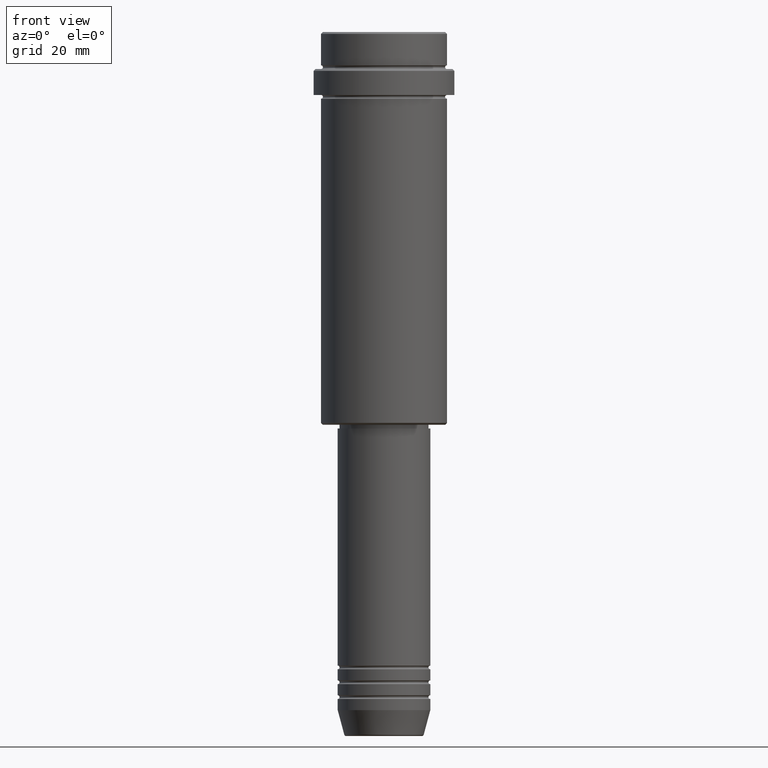
[diagram: clean part render]
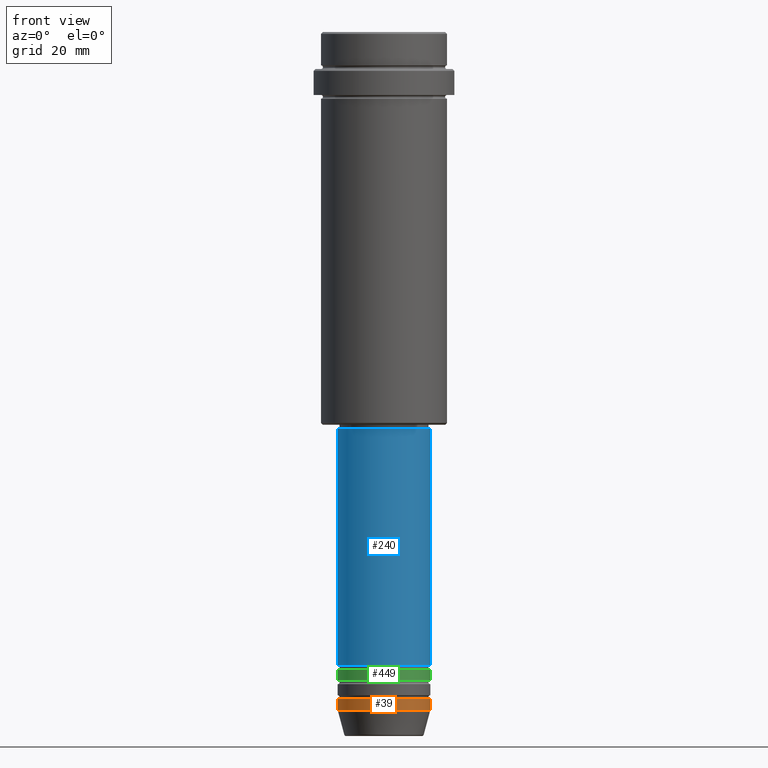
[diagram: same view with three faces highlighted in distinct colors, each labeled with its STEP entity id]
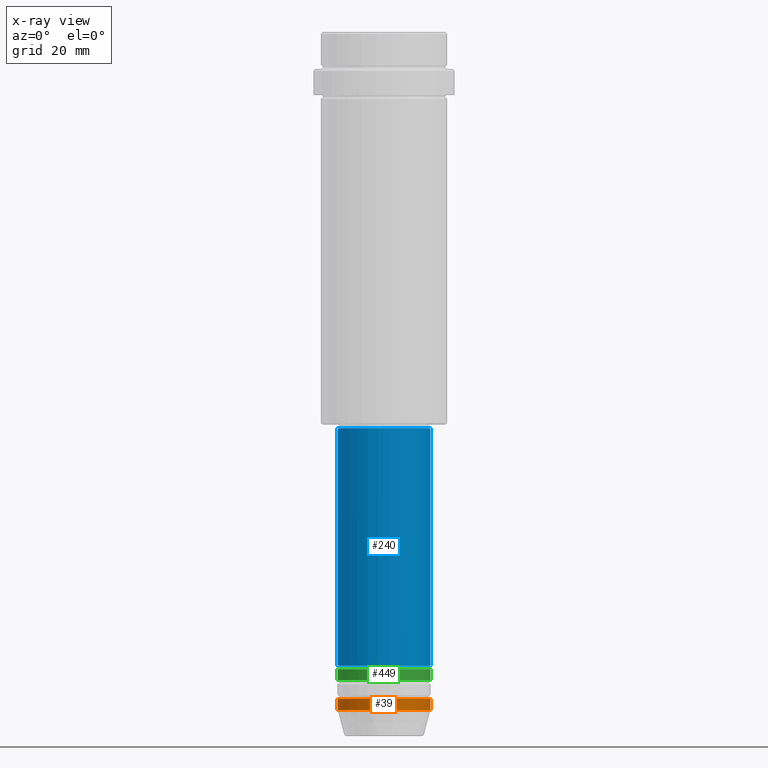
[diagram: x-ray of the same camera — body ghosted, the three highlighted faces saturated]
A machine part, front view with three faces highlighted in distinct colors.
The next image is the same camera in x-ray (body ghosted, the three faces saturated) — at least one of them is partly hidden behind the body in this view.
Their STEP definitions:

[orange] entity #39 — the highlighted cylindrical surface (partial cylindrical patch) has radius 12.5 mm, axis along (-0, -0, 1).
#33 = CARTESIAN_POINT ( 'NONE',  ( 0.000000000000000000, 0.000000000000000000, -183.0000000000000000 ) ) ;
#39 = ADVANCED_FACE ( 'NONE', ( #86 ), #529, .T. ) ;
#44 = CARTESIAN_POINT ( 'NONE',  ( -12.50000000000000000, 1.530808498934191521E-15, 0.000000000000000000 ) ) ;
#47 = CIRCLE ( 'NONE', #1390, 12.50000000000000000 ) ;
#84 = VERTEX_POINT ( 'NONE', #1190 ) ;
#86 = FACE_OUTER_BOUND ( 'NONE', #1262, .T. ) ;
#182 = AXIS2_PLACEMENT_3D ( 'NONE', #33, #1098, #463 ) ;
#200 = LINE ( 'NONE', #862, #1085 ) ;
#234 = DIRECTION ( 'NONE',  ( -0.000000000000000000, -0.000000000000000000, 1.000000000000000000 ) ) ;
#275 = DIRECTION ( 'NONE',  ( 1.000000000000000000, 0.000000000000000000, 0.000000000000000000 ) ) ;
#282 = EDGE_CURVE ( 'NONE', #1005, #1207, #695, .T. ) ;
#423 = CARTESIAN_POINT ( 'NONE',  ( 0.000000000000000000, 0.000000000000000000, 0.000000000000000000 ) ) ;
#463 = DIRECTION ( 'NONE',  ( 1.000000000000000000, 0.000000000000000000, 0.000000000000000000 ) ) ;
#485 = ORIENTED_EDGE ( 'NONE', *, *, #555, .T. ) ;
#529 = CYLINDRICAL_SURFACE ( 'NONE', #841, 12.50000000000000000 ) ;
#555 = EDGE_CURVE ( 'NONE', #1207, #1015, #200, .T. ) ;
#559 = CARTESIAN_POINT ( 'NONE',  ( -12.50000000000000000, 1.530808498934191521E-15, -183.0000000000000000 ) ) ;
#592 = LINE ( 'NONE', #44, #1016 ) ;
#641 = DIRECTION ( 'NONE',  ( -0.000000000000000000, -0.000000000000000000, 1.000000000000000000 ) ) ;
#695 = CIRCLE ( 'NONE', #182, 12.50000000000000000 ) ;
#752 = DIRECTION ( 'NONE',  ( -0.000000000000000000, -0.000000000000000000, 1.000000000000000000 ) ) ;
#773 = ORIENTED_EDGE ( 'NONE', *, *, #1008, .F. ) ;
#815 = CARTESIAN_POINT ( 'NONE',  ( 0.000000000000000000, 0.000000000000000000, -180.0000000000000000 ) ) ;
#841 = AXIS2_PLACEMENT_3D ( 'NONE', #423, #752, #1170 ) ;
#862 = CARTESIAN_POINT ( 'NONE',  ( 12.50000000000000000, 0.000000000000000000, 0.000000000000000000 ) ) ;
#905 = EDGE_CURVE ( 'NONE', #84, #1015, #47, .T. ) ;
#912 = CARTESIAN_POINT ( 'NONE',  ( 12.50000000000000000, 0.000000000000000000, -180.0000000000000000 ) ) ;
#1005 = VERTEX_POINT ( 'NONE', #559 ) ;
#1008 = EDGE_CURVE ( 'NONE', #1005, #84, #592, .T. ) ;
#1015 = VERTEX_POINT ( 'NONE', #912 ) ;
#1016 = VECTOR ( 'NONE', #234, 1000.000000000000000 ) ;
#1085 = VECTOR ( 'NONE', #641, 1000.000000000000000 ) ;
#1091 = ORIENTED_EDGE ( 'NONE', *, *, #282, .T. ) ;
#1098 = DIRECTION ( 'NONE',  ( -0.000000000000000000, -0.000000000000000000, 1.000000000000000000 ) ) ;
#1168 = ORIENTED_EDGE ( 'NONE', *, *, #905, .F. ) ;
#1170 = DIRECTION ( 'NONE',  ( 1.000000000000000000, 0.000000000000000000, 0.000000000000000000 ) ) ;
#1190 = CARTESIAN_POINT ( 'NONE',  ( -12.50000000000000000, 1.530808498934191521E-15, -180.0000000000000000 ) ) ;
#1197 = CARTESIAN_POINT ( 'NONE',  ( 12.50000000000000000, 0.000000000000000000, -183.0000000000000000 ) ) ;
#1207 = VERTEX_POINT ( 'NONE', #1197 ) ;
#1262 = EDGE_LOOP ( 'NONE', ( #773, #1091, #485, #1168 ) ) ;
#1263 = DIRECTION ( 'NONE',  ( -0.000000000000000000, -0.000000000000000000, 1.000000000000000000 ) ) ;
#1390 = AXIS2_PLACEMENT_3D ( 'NONE', #815, #1263, #275 ) ;

[blue] entity #240 — the highlighted cylindrical surface (partial cylindrical patch) has radius 12.5 mm, axis along (-0, -0, 1).
#11 = ORIENTED_EDGE ( 'NONE', *, *, #398, .T. ) ;
#45 = EDGE_CURVE ( 'NONE', #1114, #1288, #1308, .T. ) ;
#50 = CARTESIAN_POINT ( 'NONE',  ( 0.000000000000000000, 0.000000000000000000, -107.0000000000000000 ) ) ;
#89 = CIRCLE ( 'NONE', #1082, 12.50000000000000000 ) ;
#162 = DIRECTION ( 'NONE',  ( -0.000000000000000000, -0.000000000000000000, 1.000000000000000000 ) ) ;
#183 = VERTEX_POINT ( 'NONE', #1174 ) ;
#240 = ADVANCED_FACE ( 'NONE', ( #1325 ), #1089, .T. ) ;
#296 = VECTOR ( 'NONE', #1093, 1000.000000000000000 ) ;
#380 = DIRECTION ( 'NONE',  ( 1.000000000000000000, 0.000000000000000000, 0.000000000000000000 ) ) ;
#395 = DIRECTION ( 'NONE',  ( -0.000000000000000000, -0.000000000000000000, 1.000000000000000000 ) ) ;
#398 = EDGE_CURVE ( 'NONE', #183, #1114, #735, .T. ) ;
#430 = CARTESIAN_POINT ( 'NONE',  ( 12.50000000000000000, 0.000000000000000000, -107.0000000000000000 ) ) ;
#521 = LINE ( 'NONE', #837, #1199 ) ;
#561 = CARTESIAN_POINT ( 'NONE',  ( 0.000000000000000000, 0.000000000000000000, 0.000000000000000000 ) ) ;
#567 = CARTESIAN_POINT ( 'NONE',  ( 0.000000000000000000, 0.000000000000000000, -170.9999999999999147 ) ) ;
#691 = ORIENTED_EDGE ( 'NONE', *, *, #45, .T. ) ;
#700 = CARTESIAN_POINT ( 'NONE',  ( -12.50000000000000000, 1.530808498934191521E-15, -107.0000000000000000 ) ) ;
#721 = EDGE_CURVE ( 'NONE', #183, #816, #521, .T. ) ;
#735 = CIRCLE ( 'NONE', #1112, 12.50000000000000000 ) ;
#775 = DIRECTION ( 'NONE',  ( -0.000000000000000000, -0.000000000000000000, 1.000000000000000000 ) ) ;
#816 = VERTEX_POINT ( 'NONE', #700 ) ;
#837 = CARTESIAN_POINT ( 'NONE',  ( -12.50000000000000000, 1.530808498934191521E-15, 0.000000000000000000 ) ) ;
#850 = EDGE_CURVE ( 'NONE', #816, #1288, #89, .T. ) ;
#864 = CARTESIAN_POINT ( 'NONE',  ( 12.50000000000000000, 0.000000000000000000, 0.000000000000000000 ) ) ;
#881 = DIRECTION ( 'NONE',  ( 1.000000000000000000, 0.000000000000000000, 0.000000000000000000 ) ) ;
#902 = ORIENTED_EDGE ( 'NONE', *, *, #850, .F. ) ;
#976 = ORIENTED_EDGE ( 'NONE', *, *, #721, .F. ) ;
#1012 = EDGE_LOOP ( 'NONE', ( #976, #11, #691, #902 ) ) ;
#1082 = AXIS2_PLACEMENT_3D ( 'NONE', #50, #395, #380 ) ;
#1089 = CYLINDRICAL_SURFACE ( 'NONE', #1330, 12.50000000000000000 ) ;
#1093 = DIRECTION ( 'NONE',  ( -0.000000000000000000, -0.000000000000000000, 1.000000000000000000 ) ) ;
#1112 = AXIS2_PLACEMENT_3D ( 'NONE', #567, #1347, #1357 ) ;
#1114 = VERTEX_POINT ( 'NONE', #1164 ) ;
#1164 = CARTESIAN_POINT ( 'NONE',  ( 12.50000000000000000, 0.000000000000000000, -170.9999999999999147 ) ) ;
#1174 = CARTESIAN_POINT ( 'NONE',  ( -12.50000000000000000, 1.530808498934191521E-15, -170.9999999999999147 ) ) ;
#1199 = VECTOR ( 'NONE', #162, 1000.000000000000000 ) ;
#1288 = VERTEX_POINT ( 'NONE', #430 ) ;
#1308 = LINE ( 'NONE', #864, #296 ) ;
#1325 = FACE_OUTER_BOUND ( 'NONE', #1012, .T. ) ;
#1330 = AXIS2_PLACEMENT_3D ( 'NONE', #561, #775, #881 ) ;
#1347 = DIRECTION ( 'NONE',  ( -0.000000000000000000, -0.000000000000000000, 1.000000000000000000 ) ) ;
#1357 = DIRECTION ( 'NONE',  ( 1.000000000000000000, 0.000000000000000000, 0.000000000000000000 ) ) ;

[green] entity #449 — the highlighted cylindrical surface (partial cylindrical patch) has radius 12.5 mm, axis along (-0, -0, 1).
#38 = VERTEX_POINT ( 'NONE', #314 ) ;
#107 = AXIS2_PLACEMENT_3D ( 'NONE', #401, #186, #632 ) ;
#140 = CARTESIAN_POINT ( 'NONE',  ( -12.50000000000000000, 1.530808498934191521E-15, -171.9999999999999147 ) ) ;
#148 = FACE_OUTER_BOUND ( 'NONE', #500, .T. ) ;
#172 = LINE ( 'NONE', #945, #906 ) ;
#181 = AXIS2_PLACEMENT_3D ( 'NONE', #756, #1080, #762 ) ;
#186 = DIRECTION ( 'NONE',  ( -0.000000000000000000, -0.000000000000000000, 1.000000000000000000 ) ) ;
#195 = ORIENTED_EDGE ( 'NONE', *, *, #550, .F. ) ;
#231 = VERTEX_POINT ( 'NONE', #140 ) ;
#309 = DIRECTION ( 'NONE',  ( -0.000000000000000000, -0.000000000000000000, 1.000000000000000000 ) ) ;
#314 = CARTESIAN_POINT ( 'NONE',  ( 12.50000000000000000, 0.000000000000000000, -174.9999999999998863 ) ) ;
#316 = CIRCLE ( 'NONE', #642, 12.50000000000000000 ) ;
#345 = ORIENTED_EDGE ( 'NONE', *, *, #944, .T. ) ;
#354 = VERTEX_POINT ( 'NONE', #1186 ) ;
#383 = DIRECTION ( 'NONE',  ( 1.000000000000000000, 0.000000000000000000, 0.000000000000000000 ) ) ;
#401 = CARTESIAN_POINT ( 'NONE',  ( 0.000000000000000000, 0.000000000000000000, 0.000000000000000000 ) ) ;
#425 = VERTEX_POINT ( 'NONE', #1336 ) ;
#449 = ADVANCED_FACE ( 'NONE', ( #148 ), #1261, .T. ) ;
#483 = EDGE_CURVE ( 'NONE', #38, #354, #172, .T. ) ;
#500 = EDGE_LOOP ( 'NONE', ( #195, #345, #1273, #524 ) ) ;
#524 = ORIENTED_EDGE ( 'NONE', *, *, #1274, .F. ) ;
#550 = EDGE_CURVE ( 'NONE', #425, #231, #848, .T. ) ;
#556 = VECTOR ( 'NONE', #309, 1000.000000000000000 ) ;
#632 = DIRECTION ( 'NONE',  ( 1.000000000000000000, 0.000000000000000000, 0.000000000000000000 ) ) ;
#642 = AXIS2_PLACEMENT_3D ( 'NONE', #661, #1241, #383 ) ;
#661 = CARTESIAN_POINT ( 'NONE',  ( 0.000000000000000000, 0.000000000000000000, -174.9999999999998863 ) ) ;
#670 = CIRCLE ( 'NONE', #181, 12.50000000000000000 ) ;
#756 = CARTESIAN_POINT ( 'NONE',  ( 0.000000000000000000, 0.000000000000000000, -171.9999999999999147 ) ) ;
#762 = DIRECTION ( 'NONE',  ( 1.000000000000000000, 0.000000000000000000, 0.000000000000000000 ) ) ;
#848 = LINE ( 'NONE', #1291, #556 ) ;
#906 = VECTOR ( 'NONE', #1243, 1000.000000000000000 ) ;
#944 = EDGE_CURVE ( 'NONE', #425, #38, #316, .T. ) ;
#945 = CARTESIAN_POINT ( 'NONE',  ( 12.50000000000000000, 0.000000000000000000, 0.000000000000000000 ) ) ;
#1080 = DIRECTION ( 'NONE',  ( -0.000000000000000000, -0.000000000000000000, 1.000000000000000000 ) ) ;
#1186 = CARTESIAN_POINT ( 'NONE',  ( 12.50000000000000000, 0.000000000000000000, -171.9999999999999147 ) ) ;
#1241 = DIRECTION ( 'NONE',  ( -0.000000000000000000, -0.000000000000000000, 1.000000000000000000 ) ) ;
#1243 = DIRECTION ( 'NONE',  ( -0.000000000000000000, -0.000000000000000000, 1.000000000000000000 ) ) ;
#1261 = CYLINDRICAL_SURFACE ( 'NONE', #107, 12.50000000000000000 ) ;
#1273 = ORIENTED_EDGE ( 'NONE', *, *, #483, .T. ) ;
#1274 = EDGE_CURVE ( 'NONE', #231, #354, #670, .T. ) ;
#1291 = CARTESIAN_POINT ( 'NONE',  ( -12.50000000000000000, 1.530808498934191521E-15, 0.000000000000000000 ) ) ;
#1336 = CARTESIAN_POINT ( 'NONE',  ( -12.50000000000000000, 1.530808498934191521E-15, -174.9999999999998863 ) ) ;